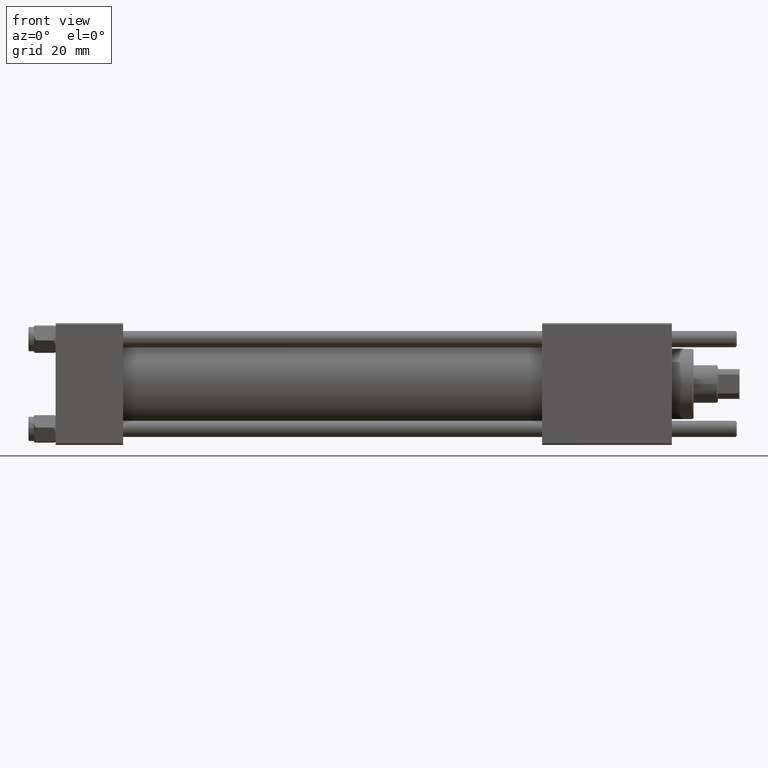
[diagram: clean part render]
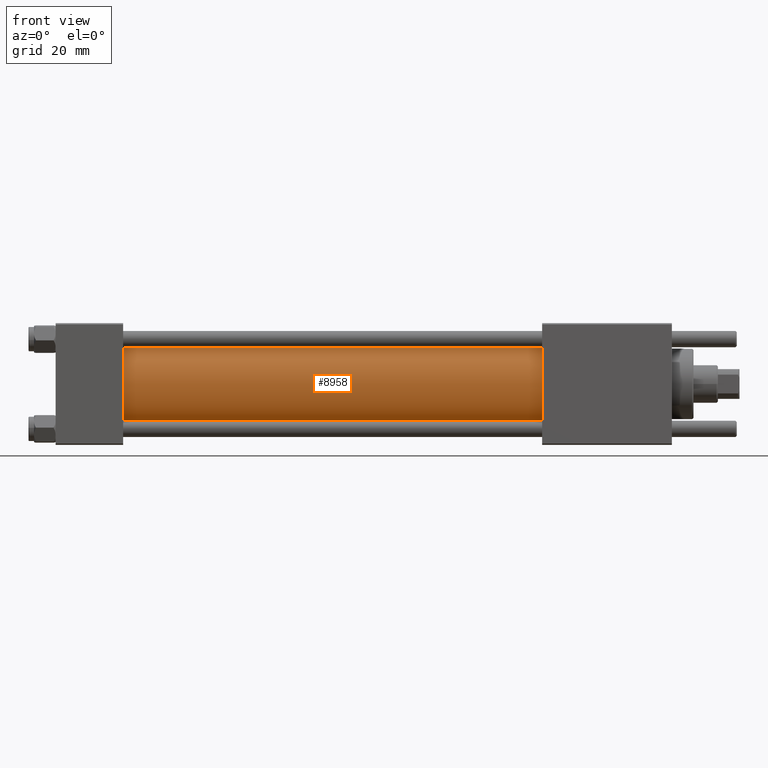
[diagram: same view with one face highlighted and labeled with its STEP entity id]
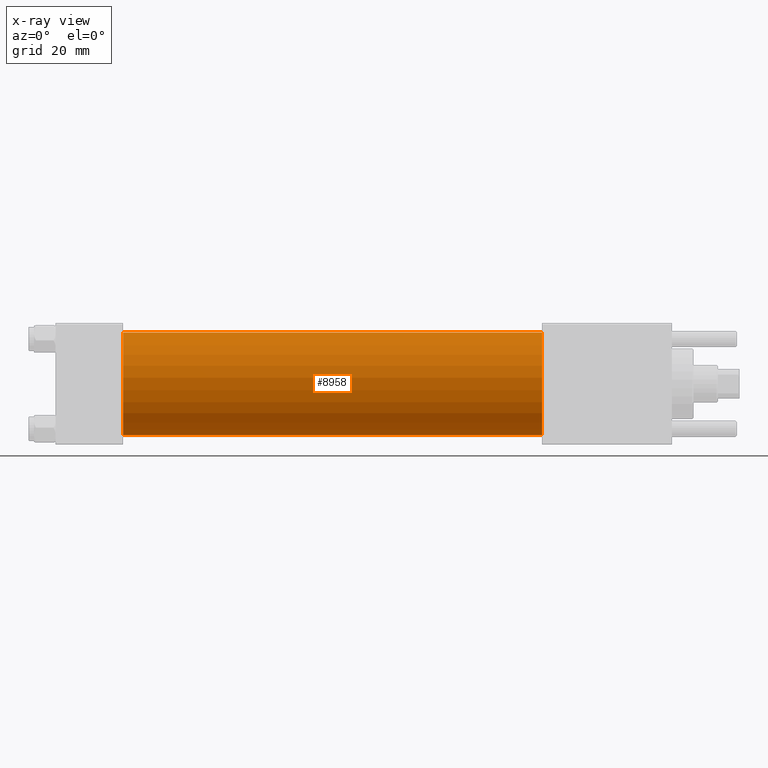
[diagram: x-ray of the same camera — body ghosted, the highlighted face saturated]
A machine part, front view. The second image highlights one B-rep face of the part: STEP entity #8958.
The next image is the same camera in x-ray: the body ghosted, the highlighted face saturated — about 0% of this face is hidden behind the body in this view.
In plain terms, the highlighted cylindrical surface (partial cylindrical patch) has radius 19 mm, axis along (-1, -0, -0).
Its self-contained STEP definition (entity closure, byte-faithful):
#1560 = CARTESIAN_POINT ( 'NONE',  ( 180.0000000000000000, -2.602085213965210642E-15, 19.00000000000000000 ) ) ;
#1839 = LINE ( 'NONE', #1560, #51430 ) ;
#2629 = ORIENTED_EDGE ( 'NONE', *, *, #51470, .T. ) ;
#3984 = EDGE_CURVE ( 'NONE', #54126, #52287, #26696, .T. ) ;
#4932 = CARTESIAN_POINT ( 'NONE',  ( 24.99999999999999289, -2.602085213965210642E-15, 0.000000000000000000 ) ) ;
#8134 = CARTESIAN_POINT ( 'NONE',  ( 180.0000000000000000, -2.752562955852396712E-16, -19.00000000000000000 ) ) ;
#8958 = ADVANCED_FACE ( 'NONE', ( #13296 ), #14147, .T. ) ;
#13296 = FACE_OUTER_BOUND ( 'NONE', #18265, .T. ) ;
#13946 = VERTEX_POINT ( 'NONE', #30675 ) ;
#14147 = CYLINDRICAL_SURFACE ( 'NONE', #52539, 19.00000000000000000 ) ;
#15818 = ORIENTED_EDGE ( 'NONE', *, *, #3984, .F. ) ;
#17945 = EDGE_CURVE ( 'NONE', #52287, #29529, #34211, .T. ) ;
#18265 = EDGE_LOOP ( 'NONE', ( #46054, #15818, #19971, #2629 ) ) ;
#18910 = CARTESIAN_POINT ( 'NONE',  ( 180.0000000000000000, -2.602085213965210642E-15, 19.00000000000000000 ) ) ;
#19971 = ORIENTED_EDGE ( 'NONE', *, *, #51927, .T. ) ;
#21900 = DIRECTION ( 'NONE',  ( 1.000000000000000000, 0.000000000000000000, 0.000000000000000000 ) ) ;
#23320 = CARTESIAN_POINT ( 'NONE',  ( 180.0000000000000000, -2.602085213965210642E-15, 0.000000000000000000 ) ) ;
#23869 = AXIS2_PLACEMENT_3D ( 'NONE', #4932, #36818, #41146 ) ;
#26696 = CIRCLE ( 'NONE', #55159, 19.00000000000000000 ) ;
#29529 = VERTEX_POINT ( 'NONE', #50753 ) ;
#29887 = DIRECTION ( 'NONE',  ( -1.000000000000000000, -0.000000000000000000, -0.000000000000000000 ) ) ;
#30675 = CARTESIAN_POINT ( 'NONE',  ( 24.99999999999999289, -2.602085213965210642E-15, 19.00000000000000000 ) ) ;
#31066 = DIRECTION ( 'NONE',  ( -1.000000000000000000, -0.000000000000000000, -0.000000000000000000 ) ) ;
#34211 = LINE ( 'NONE', #51747, #40735 ) ;
#34535 = CARTESIAN_POINT ( 'NONE',  ( 180.0000000000000000, -2.602085213965210642E-15, 0.000000000000000000 ) ) ;
#36818 = DIRECTION ( 'NONE',  ( 1.000000000000000000, -0.000000000000000000, 0.000000000000000000 ) ) ;
#40735 = VECTOR ( 'NONE', #29887, 1000.000000000000000 ) ;
#41146 = DIRECTION ( 'NONE',  ( 0.000000000000000000, 0.000000000000000000, 1.000000000000000000 ) ) ;
#44971 = DIRECTION ( 'NONE',  ( -1.000000000000000000, -0.000000000000000000, -0.000000000000000000 ) ) ;
#46054 = ORIENTED_EDGE ( 'NONE', *, *, #17945, .F. ) ;
#48338 = DIRECTION ( 'NONE',  ( 0.000000000000000000, 0.000000000000000000, -1.000000000000000000 ) ) ;
#48654 = CIRCLE ( 'NONE', #23869, 19.00000000000000000 ) ;
#49475 = DIRECTION ( 'NONE',  ( 0.000000000000000000, 0.000000000000000000, 1.000000000000000000 ) ) ;
#50753 = CARTESIAN_POINT ( 'NONE',  ( 24.99999999999999289, -2.752562955852396712E-16, -19.00000000000000000 ) ) ;
#51430 = VECTOR ( 'NONE', #44971, 1000.000000000000000 ) ;
#51470 = EDGE_CURVE ( 'NONE', #13946, #29529, #48654, .T. ) ;
#51747 = CARTESIAN_POINT ( 'NONE',  ( 180.0000000000000000, -2.752562955852396712E-16, -19.00000000000000000 ) ) ;
#51927 = EDGE_CURVE ( 'NONE', #54126, #13946, #1839, .T. ) ;
#52287 = VERTEX_POINT ( 'NONE', #8134 ) ;
#52539 = AXIS2_PLACEMENT_3D ( 'NONE', #23320, #31066, #49475 ) ;
#54126 = VERTEX_POINT ( 'NONE', #18910 ) ;
#55159 = AXIS2_PLACEMENT_3D ( 'NONE', #34535, #21900, #48338 ) ;